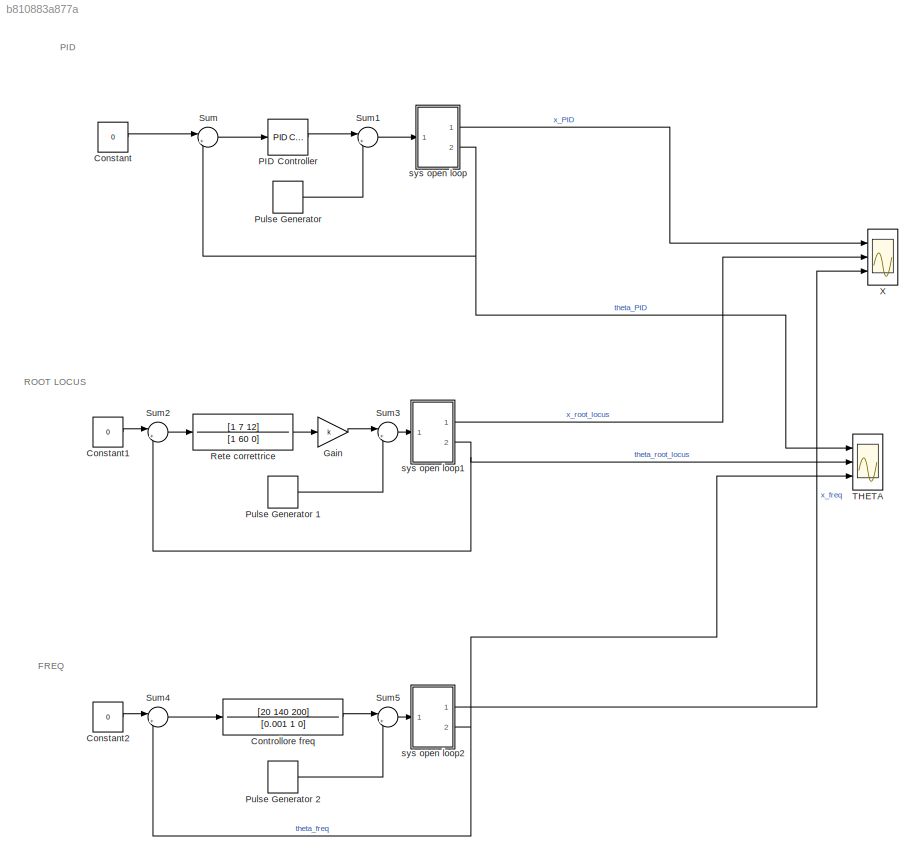
MODEL slx_b810883a877a
KIND model
CONFIG AbsTol = auto
CONFIG EnableMultiTasking = off
CONFIG FixedStep = auto
CONFIG MaxStep = auto
CONFIG MinStep = auto
CONFIG RelTol = 1e-3
CONFIG SampleTimeConstraint = Unconstrained
CONFIG SolverName = VariableStepAuto
CONFIG StartTime = 0.0
CONFIG StopTime = 10.0
BLOCK [Constant] Constant
  Value = 0
BLOCK [Constant] Constant1
  Value = 0
BLOCK [Constant] Constant2
  Value = 0
BLOCK [TransferFcn] Controllore freq
  Denominator = [0.001 1 0]
  Numerator = [20 140 200]
BLOCK [Gain] Gain
  Gain = k
BLOCK [Reference] PID Controller  REF=pid_lib/PID Controller
  Ports = [1, 1]
  SourceBlock = pid_lib/PID Controller
  SourceProductBaseCode = SL
  SourceType = PID 1dof
BLOCK [DiscretePulseGenerator] Pulse Generator 
  Period = 10
  Ports = [0, 1]
  PulseType = Time based
  PulseWidth = 5
BLOCK [DiscretePulseGenerator] Pulse Generator 1
  Period = 10
  Ports = [0, 1]
  PulseType = Time based
  PulseWidth = 5
BLOCK [DiscretePulseGenerator] Pulse Generator 2
  Period = 10
  Ports = [0, 1]
  PulseType = Time based
  PulseWidth = 5
BLOCK [TransferFcn] Rete correttrice 
  Denominator = [1 60 0]
  Numerator = [1 7 12]
BLOCK [Sum] Sum
  Inputs = |++
  Ports = [2, 1]
BLOCK [Sum] Sum1
  Inputs = |++
  Ports = [2, 1]
BLOCK [Sum] Sum2
  Inputs = |++
  Ports = [2, 1]
BLOCK [Sum] Sum3
  Inputs = |++
  Ports = [2, 1]
BLOCK [Sum] Sum4
  Inputs = |++
  Ports = [2, 1]
BLOCK [Sum] Sum5
  Inputs = |++
  Ports = [2, 1]
BLOCK [Scope] THETA
  Floating = off
  NumInputPorts = 3
  Ports = [3]
  ScopeSpecificationString = Simulink.scopes.TimeScopeBlockCfg('CurrentConfiguration', extmgr.ConfigurationSet(extmgr.Configuration('Core','General UI',true),extmgr.Configuration('Core','Source UI',true),extmgr.Configuration('Sources','WiredSimulink',true,'DataLoggingVariableName','ScopeData1'),extmgr.Configuration('Visuals','Time Domain',true,'SerializedDisplays',{struct('MinYLimReal','-4.37811','MaxYLimReal','4.37882','YLab...<+1533ch>
BLOCK [Scope] X
  Floating = off
  NumInputPorts = 3
  Ports = [3]
  ScopeSpecificationString = Simulink.scopes.TimeScopeBlockCfg('CurrentConfiguration', extmgr.ConfigurationSet(extmgr.Configuration('Core','General UI',true),extmgr.Configuration('Core','Source UI',true),extmgr.Configuration('Sources','WiredSimulink',true),extmgr.Configuration('Visuals','Time Domain',true,'SerializedDisplays',{struct('MinYLimReal','-1361.23476','MaxYLimReal','12251.11283','YLabelReal','','MinYLimMag','  0.000...<+1398ch>
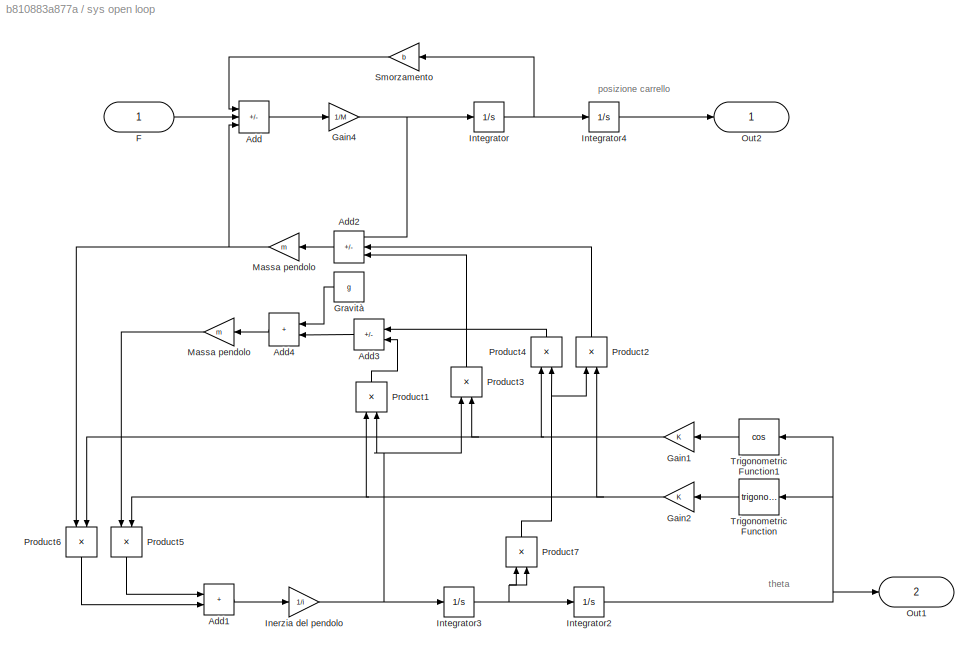
BLOCK [SubSystem] sys open loop
  Ports = [1, 2]
  RequestExecContextInheritance = off
BLOCK [Sum] sys open loop/Add
  IconShape = rectangular
  Inputs = -+-
  Ports = [3, 1]
BLOCK [Sum] sys open loop/Add1
  IconShape = rectangular
  Ports = [2, 1]
BLOCK [Sum] sys open loop/Add2
  IconShape = rectangular
  Inputs = ++-
  Ports = [3, 1]
BLOCK [Sum] sys open loop/Add3
  IconShape = rectangular
  Inputs = --
  Ports = [2, 1]
BLOCK [Sum] sys open loop/Add4
  IconShape = rectangular
  Ports = [2, 1]
BLOCK [Inport] sys open loop/F
BLOCK [Gain] sys open loop/Gain1
  NameLocation = top
BLOCK [Gain] sys open loop/Gain2
  NameLocation = top
BLOCK [Gain] sys open loop/Gain4
  Gain = 1/M
BLOCK [Constant] sys open loop/Gravità
  Value = g
BLOCK [Gain] sys open loop/Inerzia del pendolo
  Gain = 1/i
BLOCK [Integrator] sys open loop/Integrator
  Ports = [1, 1]
BLOCK [Integrator] sys open loop/Integrator2
  Ports = [1, 1]
BLOCK [Integrator] sys open loop/Integrator3
  Ports = [1, 1]
BLOCK [Integrator] sys open loop/Integrator4
  Ports = [1, 1]
BLOCK [Gain] sys open loop/Massa pendolo
  Gain = m
BLOCK [Gain] sys open loop/Massa pendolo 
  Gain = m
BLOCK [Outport] sys open loop/Out1
  Port = 2
BLOCK [Outport] sys open loop/Out2
BLOCK [Product] sys open loop/Product1
  NameLocation = right
  Ports = [2, 1]
BLOCK [Product] sys open loop/Product2
  NameLocation = right
  Ports = [2, 1]
BLOCK [Product] sys open loop/Product3
  NameLocation = right
  Ports = [2, 1]
BLOCK [Product] sys open loop/Product4
  NameLocation = right
  Ports = [2, 1]
BLOCK [Product] sys open loop/Product5
  NameLocation = left
  Ports = [2, 1]
BLOCK [Product] sys open loop/Product6
  NameLocation = left
  Ports = [2, 1]
BLOCK [Product] sys open loop/Product7
  NameLocation = right
  Ports = [2, 1]
BLOCK [Gain] sys open loop/Smorzamento
  Gain = b
BLOCK [Trigonometry] sys open loop/Trigonometric Function
  NameLocation = top
  Ports = [1, 1]
BLOCK [Trigonometry] sys open loop/Trigonometric Function1
  NameLocation = top
  Operator = cos
  Ports = [1, 1]
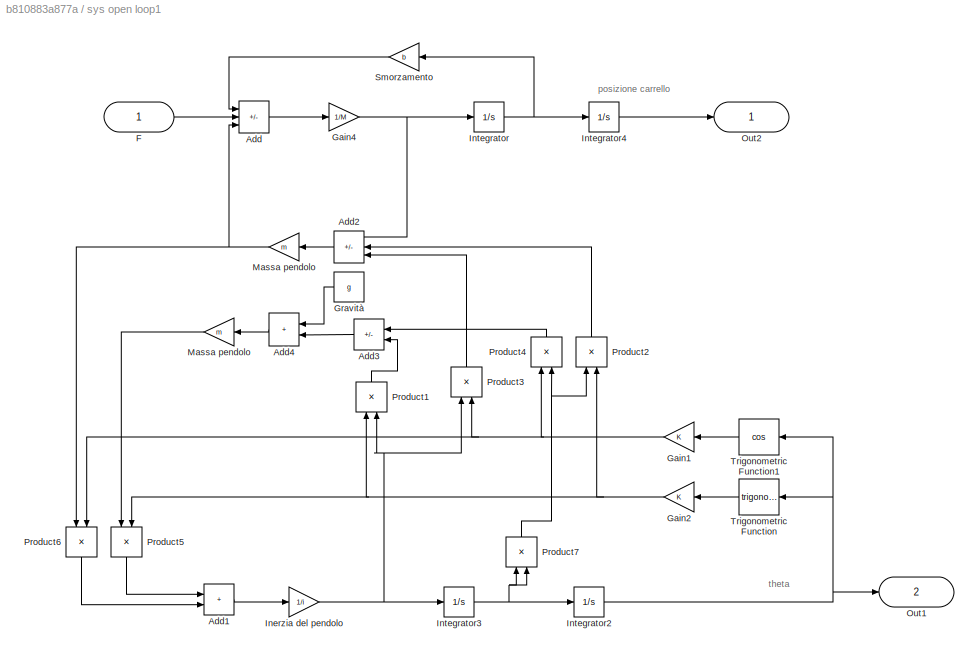
BLOCK [SubSystem] sys open loop1
  Ports = [1, 2]
  RequestExecContextInheritance = off
BLOCK [Sum] sys open loop1/Add
  IconShape = rectangular
  Inputs = -+-
  Ports = [3, 1]
BLOCK [Sum] sys open loop1/Add1
  IconShape = rectangular
  Ports = [2, 1]
BLOCK [Sum] sys open loop1/Add2
  IconShape = rectangular
  Inputs = ++-
  Ports = [3, 1]
BLOCK [Sum] sys open loop1/Add3
  IconShape = rectangular
  Inputs = --
  Ports = [2, 1]
BLOCK [Sum] sys open loop1/Add4
  IconShape = rectangular
  Ports = [2, 1]
BLOCK [Inport] sys open loop1/F
BLOCK [Gain] sys open loop1/Gain1
  NameLocation = top
BLOCK [Gain] sys open loop1/Gain2
  NameLocation = top
BLOCK [Gain] sys open loop1/Gain4
  Gain = 1/M
BLOCK [Constant] sys open loop1/Gravità
  Value = g
BLOCK [Gain] sys open loop1/Inerzia del pendolo
  Gain = 1/i
BLOCK [Integrator] sys open loop1/Integrator
  Ports = [1, 1]
BLOCK [Integrator] sys open loop1/Integrator2
  Ports = [1, 1]
BLOCK [Integrator] sys open loop1/Integrator3
  Ports = [1, 1]
BLOCK [Integrator] sys open loop1/Integrator4
  Ports = [1, 1]
BLOCK [Gain] sys open loop1/Massa pendolo
  Gain = m
BLOCK [Gain] sys open loop1/Massa pendolo 
  Gain = m
BLOCK [Outport] sys open loop1/Out1
  Port = 2
BLOCK [Outport] sys open loop1/Out2
BLOCK [Product] sys open loop1/Product1
  NameLocation = right
  Ports = [2, 1]
BLOCK [Product] sys open loop1/Product2
  NameLocation = right
  Ports = [2, 1]
BLOCK [Product] sys open loop1/Product3
  NameLocation = right
  Ports = [2, 1]
BLOCK [Product] sys open loop1/Product4
  NameLocation = right
  Ports = [2, 1]
BLOCK [Product] sys open loop1/Product5
  NameLocation = left
  Ports = [2, 1]
BLOCK [Product] sys open loop1/Product6
  NameLocation = left
  Ports = [2, 1]
BLOCK [Product] sys open loop1/Product7
  NameLocation = right
  Ports = [2, 1]
BLOCK [Gain] sys open loop1/Smorzamento
  Gain = b
BLOCK [Trigonometry] sys open loop1/Trigonometric Function
  NameLocation = top
  Ports = [1, 1]
BLOCK [Trigonometry] sys open loop1/Trigonometric Function1
  NameLocation = top
  Operator = cos
  Ports = [1, 1]
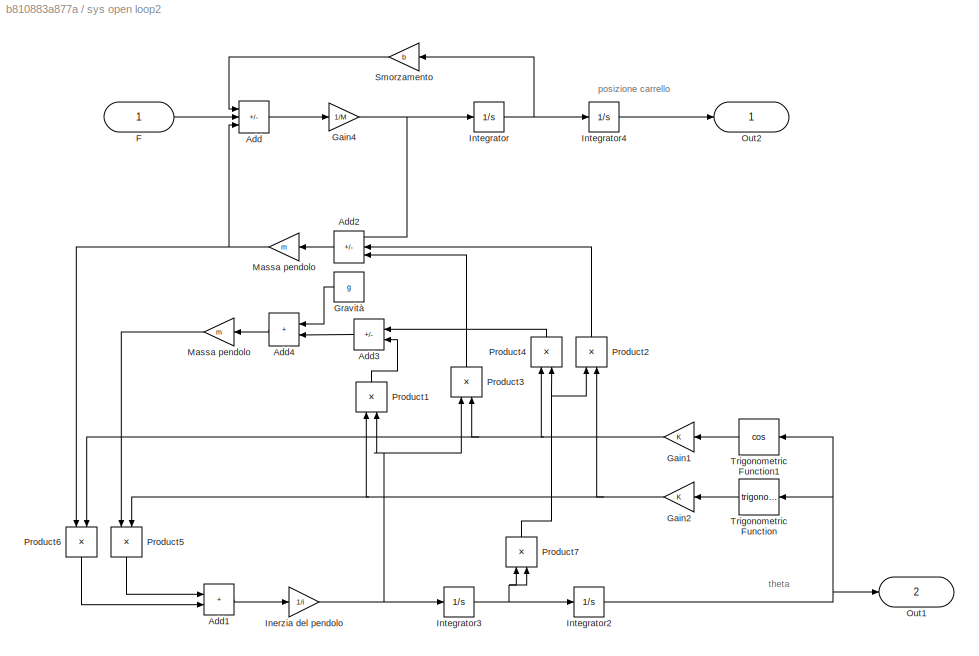
BLOCK [SubSystem] sys open loop2
  Ports = [1, 2]
  RequestExecContextInheritance = off
BLOCK [Sum] sys open loop2/Add
  IconShape = rectangular
  Inputs = -+-
  Ports = [3, 1]
BLOCK [Sum] sys open loop2/Add1
  IconShape = rectangular
  Ports = [2, 1]
BLOCK [Sum] sys open loop2/Add2
  IconShape = rectangular
  Inputs = ++-
  Ports = [3, 1]
BLOCK [Sum] sys open loop2/Add3
  IconShape = rectangular
  Inputs = --
  Ports = [2, 1]
BLOCK [Sum] sys open loop2/Add4
  IconShape = rectangular
  Ports = [2, 1]
BLOCK [Inport] sys open loop2/F
BLOCK [Gain] sys open loop2/Gain1
  NameLocation = top
BLOCK [Gain] sys open loop2/Gain2
  NameLocation = top
BLOCK [Gain] sys open loop2/Gain4
  Gain = 1/M
BLOCK [Constant] sys open loop2/Gravità
  Value = g
BLOCK [Gain] sys open loop2/Inerzia del pendolo
  Gain = 1/i
BLOCK [Integrator] sys open loop2/Integrator
  Ports = [1, 1]
BLOCK [Integrator] sys open loop2/Integrator2
  Ports = [1, 1]
BLOCK [Integrator] sys open loop2/Integrator3
  Ports = [1, 1]
BLOCK [Integrator] sys open loop2/Integrator4
  Ports = [1, 1]
BLOCK [Gain] sys open loop2/Massa pendolo
  Gain = m
BLOCK [Gain] sys open loop2/Massa pendolo 
  Gain = m
BLOCK [Outport] sys open loop2/Out1
  Port = 2
BLOCK [Outport] sys open loop2/Out2
BLOCK [Product] sys open loop2/Product1
  NameLocation = right
  Ports = [2, 1]
BLOCK [Product] sys open loop2/Product2
  NameLocation = right
  Ports = [2, 1]
BLOCK [Product] sys open loop2/Product3
  NameLocation = right
  Ports = [2, 1]
BLOCK [Product] sys open loop2/Product4
  NameLocation = right
  Ports = [2, 1]
BLOCK [Product] sys open loop2/Product5
  NameLocation = left
  Ports = [2, 1]
BLOCK [Product] sys open loop2/Product6
  NameLocation = left
  Ports = [2, 1]
BLOCK [Product] sys open loop2/Product7
  NameLocation = right
  Ports = [2, 1]
BLOCK [Gain] sys open loop2/Smorzamento
  Gain = b
BLOCK [Trigonometry] sys open loop2/Trigonometric Function
  NameLocation = top
  Ports = [1, 1]
BLOCK [Trigonometry] sys open loop2/Trigonometric Function1
  NameLocation = top
  Operator = cos
  Ports = [1, 1]
ANNOTATION (root): FREQ
ANNOTATION (root): PID
ANNOTATION (root): ROOT LOCUS
ANNOTATION sys open loop: posizione carrello
ANNOTATION sys open loop: theta
ANNOTATION sys open loop1: posizione carrello
ANNOTATION sys open loop1: theta
ANNOTATION sys open loop2: posizione carrello
ANNOTATION sys open loop2: theta
LINE Constant1:1 -> Sum2:1
LINE Constant2:1 -> Sum4:1
LINE Constant:1 -> Sum:1
LINE Controllore freq:1 -> Sum5:1
LINE Gain:1 -> Sum3:1
LINE PID Controller:1 -> Sum1:1
LINE Pulse Generator 1:1 -> Sum3:2
LINE Pulse Generator 2:1 -> Sum5:2
LINE Pulse Generator :1 -> Sum1:2
LINE Rete correttrice :1 -> Gain:1
LINE Sum1:1 -> sys open loop:1
LINE Sum2:1 -> Rete correttrice :1
LINE Sum3:1 -> sys open loop1:1
LINE Sum4:1 -> Controllore freq:1
LINE Sum5:1 -> sys open loop2:1
LINE Sum:1 -> PID Controller:1
LINE sys open loop/Add1:1 -> sys open loop/Inerzia del pendolo:1
LINE sys open loop/Add2:1 -> sys open loop/Massa pendolo:1
LINE sys open loop/Add3:1 -> sys open loop/Add4:2
LINE sys open loop/Add4:1 -> sys open loop/Massa pendolo :1
LINE sys open loop/Add:1 -> sys open loop/Gain4:1
LINE sys open loop/F:1 -> sys open loop/Add:2
NET sys open loop/Gain1:1 -> sys open loop/Product3:2, sys open loop/Product4:1, sys open loop/Product6:2
NET sys open loop/Gain2:1 -> sys open loop/Product1:1, sys open loop/Product2:2, sys open loop/Product5:2
NET sys open loop/Gain4:1 -> sys open loop/Add2:1, sys open loop/Integrator:1
LINE sys open loop/Gravità:1 -> sys open loop/Add4:1
NET sys open loop/Inerzia del pendolo:1 -> sys open loop/Integrator3:1, sys open loop/Product1:2, sys open loop/Product3:1
NET sys open loop/Integrator2:1 -> sys open loop/Out1:1, sys open loop/Trigonometric Function1:1, sys open loop/Trigonometric Function:1
NET sys open loop/Integrator3:1 -> sys open loop/Integrator2:1, sys open loop/Product7:1, sys open loop/Product7:2
LINE sys open loop/Integrator4:1 -> sys open loop/Out2:1
NET sys open loop/Integrator:1 -> sys open loop/Integrator4:1, sys open loop/Smorzamento:1
LINE sys open loop/Massa pendolo :1 -> sys open loop/Product5:1
NET sys open loop/Massa pendolo:1 -> sys open loop/Add:3, sys open loop/Product6:1
LINE sys open loop/Product1:1 -> sys open loop/Add3:2
LINE sys open loop/Product2:1 -> sys open loop/Add2:2
LINE sys open loop/Product3:1 -> sys open loop/Add2:3
LINE sys open loop/Product4:1 -> sys open loop/Add3:1
LINE sys open loop/Product5:1 -> sys open loop/Add1:1
LINE sys open loop/Product6:1 -> sys open loop/Add1:2
NET sys open loop/Product7:1 -> sys open loop/Product2:1, sys open loop/Product4:2
LINE sys open loop/Smorzamento:1 -> sys open loop/Add:1
LINE sys open loop/Trigonometric Function1:1 -> sys open loop/Gain1:1
LINE sys open loop/Trigonometric Function:1 -> sys open loop/Gain2:1
LINE sys open loop1/Add1:1 -> sys open loop1/Inerzia del pendolo:1
LINE sys open loop1/Add2:1 -> sys open loop1/Massa pendolo:1
LINE sys open loop1/Add3:1 -> sys open loop1/Add4:2
LINE sys open loop1/Add4:1 -> sys open loop1/Massa pendolo :1
LINE sys open loop1/Add:1 -> sys open loop1/Gain4:1
LINE sys open loop1/F:1 -> sys open loop1/Add:2
NET sys open loop1/Gain1:1 -> sys open loop1/Product3:2, sys open loop1/Product4:1, sys open loop1/Product6:2
NET sys open loop1/Gain2:1 -> sys open loop1/Product1:1, sys open loop1/Product2:2, sys open loop1/Product5:2
NET sys open loop1/Gain4:1 -> sys open loop1/Add2:1, sys open loop1/Integrator:1
LINE sys open loop1/Gravità:1 -> sys open loop1/Add4:1
NET sys open loop1/Inerzia del pendolo:1 -> sys open loop1/Integrator3:1, sys open loop1/Product1:2, sys open loop1/Product3:1
NET sys open loop1/Integrator2:1 -> sys open loop1/Out1:1, sys open loop1/Trigonometric Function1:1, sys open loop1/Trigonometric Function:1
NET sys open loop1/Integrator3:1 -> sys open loop1/Integrator2:1, sys open loop1/Product7:1, sys open loop1/Product7:2
LINE sys open loop1/Integrator4:1 -> sys open loop1/Out2:1
NET sys open loop1/Integrator:1 -> sys open loop1/Integrator4:1, sys open loop1/Smorzamento:1
LINE sys open loop1/Massa pendolo :1 -> sys open loop1/Product5:1
NET sys open loop1/Massa pendolo:1 -> sys open loop1/Add:3, sys open loop1/Product6:1
LINE sys open loop1/Product1:1 -> sys open loop1/Add3:2
LINE sys open loop1/Product2:1 -> sys open loop1/Add2:2
LINE sys open loop1/Product3:1 -> sys open loop1/Add2:3
LINE sys open loop1/Product4:1 -> sys open loop1/Add3:1
LINE sys open loop1/Product5:1 -> sys open loop1/Add1:1
LINE sys open loop1/Product6:1 -> sys open loop1/Add1:2
NET sys open loop1/Product7:1 -> sys open loop1/Product2:1, sys open loop1/Product4:2
LINE sys open loop1/Smorzamento:1 -> sys open loop1/Add:1
LINE sys open loop1/Trigonometric Function1:1 -> sys open loop1/Gain1:1
LINE sys open loop1/Trigonometric Function:1 -> sys open loop1/Gain2:1
LINE sys open loop1:1 -> X:2
NET sys open loop1:2 -> Sum2:2, THETA:2
LINE sys open loop2/Add1:1 -> sys open loop2/Inerzia del pendolo:1
LINE sys open loop2/Add2:1 -> sys open loop2/Massa pendolo:1
LINE sys open loop2/Add3:1 -> sys open loop2/Add4:2
LINE sys open loop2/Add4:1 -> sys open loop2/Massa pendolo :1
LINE sys open loop2/Add:1 -> sys open loop2/Gain4:1
LINE sys open loop2/F:1 -> sys open loop2/Add:2
NET sys open loop2/Gain1:1 -> sys open loop2/Product3:2, sys open loop2/Product4:1, sys open loop2/Product6:2
NET sys open loop2/Gain2:1 -> sys open loop2/Product1:1, sys open loop2/Product2:2, sys open loop2/Product5:2
NET sys open loop2/Gain4:1 -> sys open loop2/Add2:1, sys open loop2/Integrator:1
LINE sys open loop2/Gravità:1 -> sys open loop2/Add4:1
NET sys open loop2/Inerzia del pendolo:1 -> sys open loop2/Integrator3:1, sys open loop2/Product1:2, sys open loop2/Product3:1
NET sys open loop2/Integrator2:1 -> sys open loop2/Out1:1, sys open loop2/Trigonometric Function1:1, sys open loop2/Trigonometric Function:1
NET sys open loop2/Integrator3:1 -> sys open loop2/Integrator2:1, sys open loop2/Product7:1, sys open loop2/Product7:2
LINE sys open loop2/Integrator4:1 -> sys open loop2/Out2:1
NET sys open loop2/Integrator:1 -> sys open loop2/Integrator4:1, sys open loop2/Smorzamento:1
LINE sys open loop2/Massa pendolo :1 -> sys open loop2/Product5:1
NET sys open loop2/Massa pendolo:1 -> sys open loop2/Add:3, sys open loop2/Product6:1
LINE sys open loop2/Product1:1 -> sys open loop2/Add3:2
LINE sys open loop2/Product2:1 -> sys open loop2/Add2:2
LINE sys open loop2/Product3:1 -> sys open loop2/Add2:3
LINE sys open loop2/Product4:1 -> sys open loop2/Add3:1
LINE sys open loop2/Product5:1 -> sys open loop2/Add1:1
LINE sys open loop2/Product6:1 -> sys open loop2/Add1:2
NET sys open loop2/Product7:1 -> sys open loop2/Product2:1, sys open loop2/Product4:2
LINE sys open loop2/Smorzamento:1 -> sys open loop2/Add:1
LINE sys open loop2/Trigonometric Function1:1 -> sys open loop2/Gain1:1
LINE sys open loop2/Trigonometric Function:1 -> sys open loop2/Gain2:1
LINE sys open loop2:1 -> X:3
NET sys open loop2:2 -> Sum4:2, THETA:3
LINE sys open loop:1 -> X:1
NET sys open loop:2 -> Sum:2, THETA:1
note: NET lines group one-source signal fan-out (src -> all destinations, sorted); 1:1 wires keep LINE
